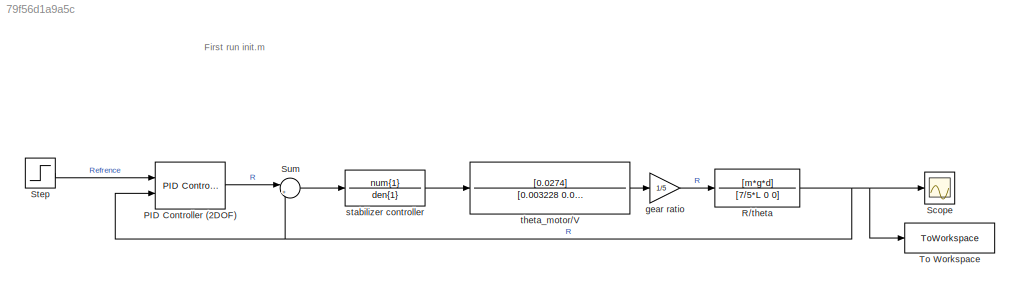
MODEL slx_79f56d1a9a5c
KIND model
CONFIG AbsTol = auto
CONFIG EnableMultiTasking = off
CONFIG FixedStep = 0.001
CONFIG MaxStep = auto
CONFIG MinStep = auto
CONFIG RelTol = 1e-3
CONFIG SampleTimeConstraint = Unconstrained
CONFIG Solver = ode4
CONFIG SolverName = ode4
CONFIG StartTime = 0.0
CONFIG StopTime = 20
BLOCK [Reference] PID Controller (2DOF)  REF=simulink/Continuous/PID Controller (2DOF)
  Ports = [2, 1]
  SourceBlock = simulink/Continuous/PID Controller (2DOF)
  SourceProductBaseCode = SL
  SourceType = PID 2dof
BLOCK [TransferFcn] R//theta
  Denominator = [7/5*L 0 0]
  Numerator = [m*g*d]
BLOCK [Scope] Scope
  Floating = off
  NumInputPorts = 1
  Ports = [1]
  ScopeSpecificationString = Simulink.scopes.TimeScopeBlockCfg('CurrentConfiguration', extmgr.ConfigurationSet(extmgr.Configuration('Core','General UI',true),extmgr.Configuration('Core','Source UI',true),extmgr.Configuration('Sources','WiredSimulink',true),extmgr.Configuration('Visuals','Time Domain',true,'SerializedDisplays',{struct('MinYLimReal','-0.06301','MaxYLimReal','0.56712','YLabelReal','','MinYLimMag','0.00000','MaxY...<+1321ch>
BLOCK [Step] Step
  After = 0.5
  SampleTime = 0
  Time = 0
BLOCK [Sum] Sum
  Inputs = |+-
  Ports = [2, 1]
BLOCK [ToWorkspace] To Workspace
  FixptAsFi = on
  MaxDataPoints = inf
  Ports = [1]
  SampleTime = -1
  SaveFormat = Timeseries
  VariableName = simout
BLOCK [Gain] gear ratio
  Gain = 1/5
BLOCK [TransferFcn] stabilizer controller
  Denominator = den{1}
  Numerator = num{1}
BLOCK [TransferFcn] theta_motor//V
  Denominator = [0.003228 0.003508 0]
  Numerator = [0.0274]
ANNOTATION (root): First run init.m
LINE PID Controller (2DOF):1 -> Sum:1
NET R//theta:1 -> PID Controller (2DOF):2, Scope:1, Sum:2, To Workspace:1
LINE Step:1 -> PID Controller (2DOF):1
LINE Sum:1 -> stabilizer controller:1
LINE gear ratio:1 -> R//theta:1
LINE stabilizer controller:1 -> theta_motor//V:1
LINE theta_motor//V:1 -> gear ratio:1
note: NET lines group one-source signal fan-out (src -> all destinations, sorted); 1:1 wires keep LINE
